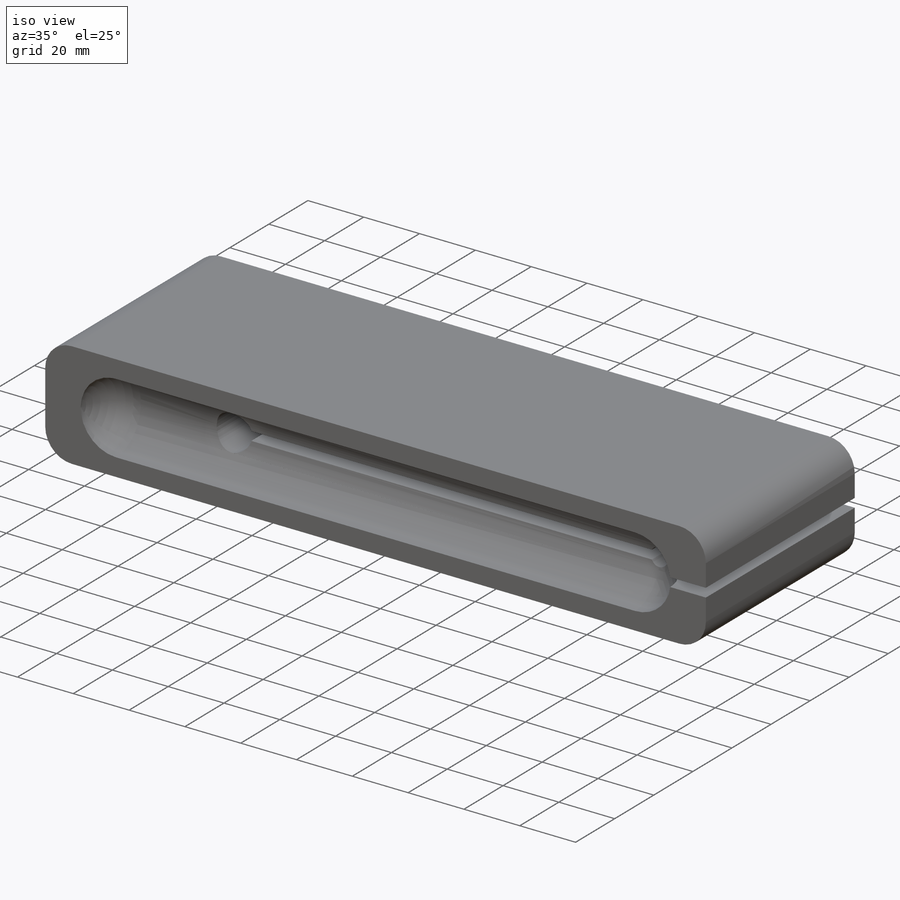
[diagram: iso view]
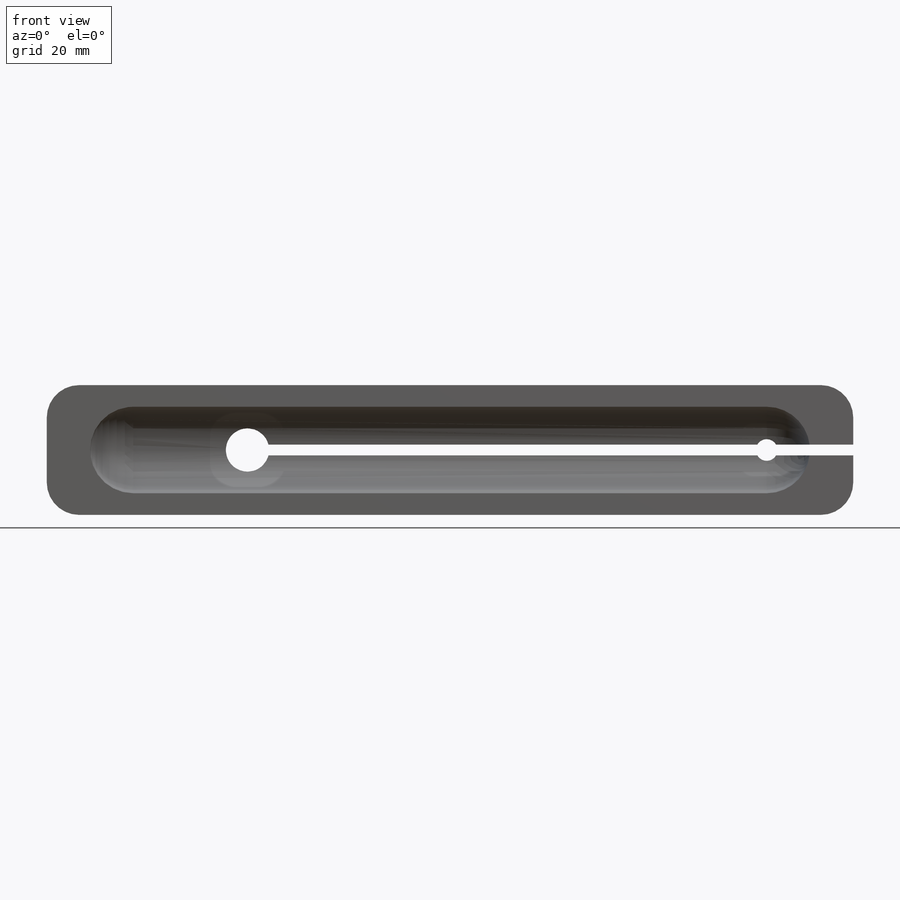
[diagram: front view]
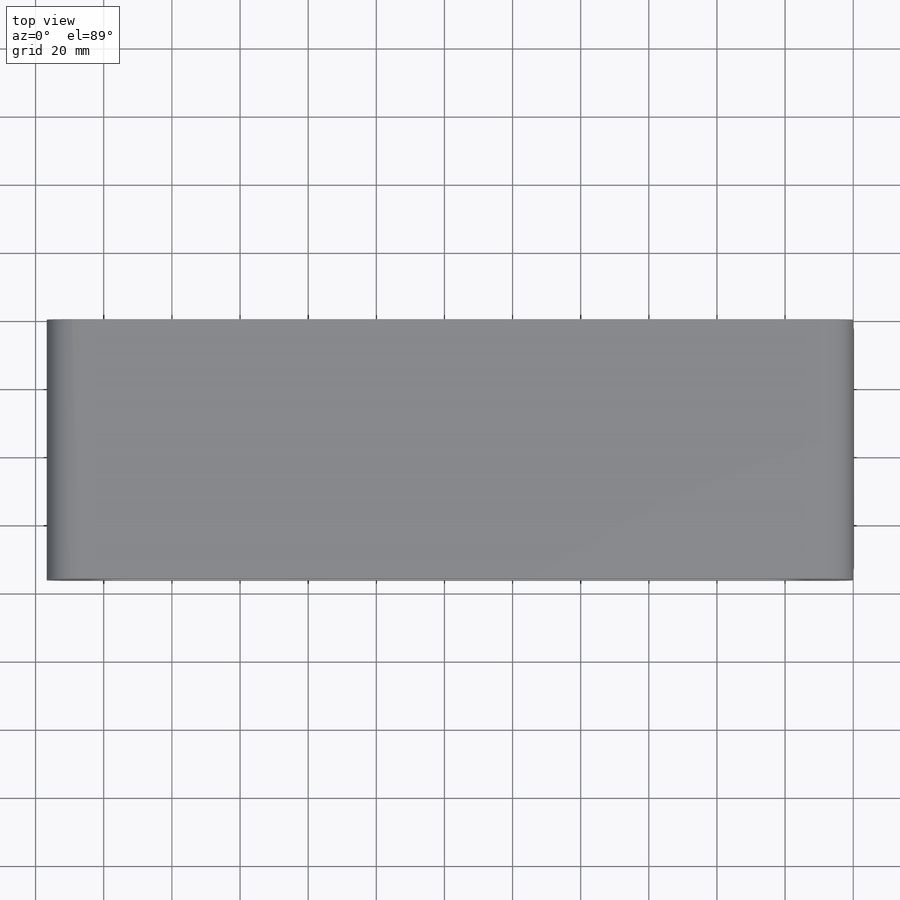
[diagram: top view]
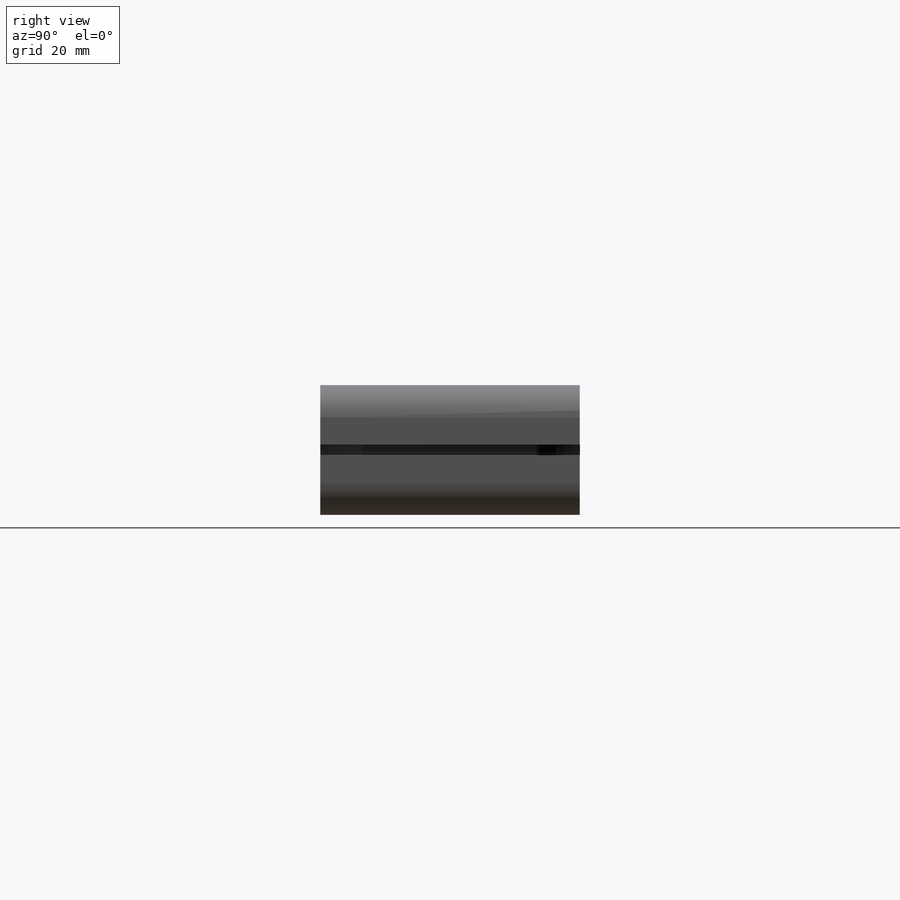
[diagram: right view]
SOLIDWORKS PART (.sldprt)
format: sldprt  version: not decoded by parser v0  size: 634,880 bytes
history: native  units: mm
features: sketch x3, cut_revolve x2, material x1, extrude x1 (+11 scaffold rows collapsed)
feature tree (18):
  scaffold x11  (default folders/planes/origin — collapsed)
  material  "Pine"
  sketch  "Sketch1"  dims[c1.D3=9.525mm c1.D4=6.35mm c1.D10=12.7mm c1.D1=38.1mm c1.D2=236.728mm c1.D5=19.05mm c1.D6=25.4mm c1.D7=3.175mm c1.D8=17.4625mm c1.D9=152.4mm c2.D7=19.05mm c2.D9=~19.054312mm c3.D7=19.05mm c3.D9=177.8mm]
  extrude  "Boss-Extrude1"  Depth=76.2mm
  sketch  "Sketch2"  dims[c1.D1=12.7mm c1.D2=12.7mm c1.D3=25.4mm c1.D4=25.4mm c1.D5=~214.084197mm c2.D5=~179.975217deg c3.D5=12.7mm]
  cut_revolve  "Cut-Revolve1"  Angle=360deg
  sketch  "Sketch4"  dims[D3=12.7mm D1=19.05mm D2=12.7mm D4=12.7mm]
  cut_revolve  "Cut-Revolve3"  Angle=360deg
decode coverage: 6 of 6 modeling features carry decoded parameters
note: ~ marks probable driven/reference dimensions
note: suppression state not decoded; provenance and decode notes live in map.json
